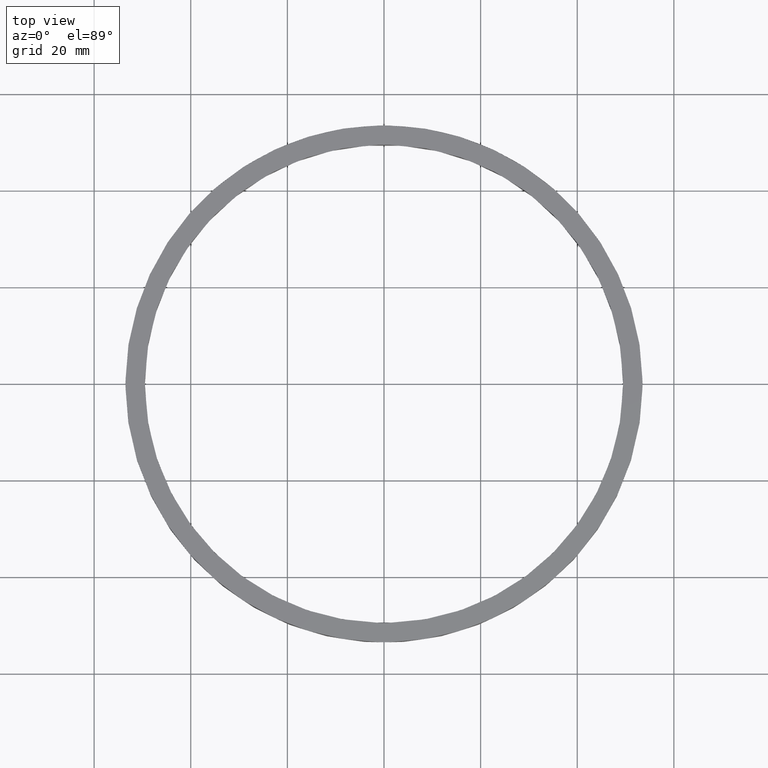
[diagram: clean part render]
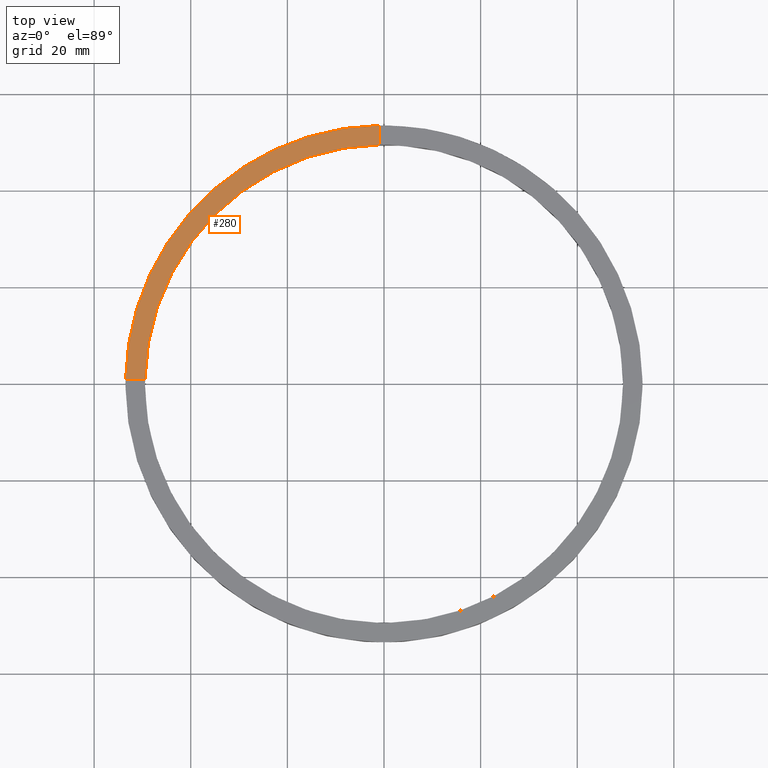
[diagram: same view with one face highlighted and labeled with its STEP entity id]
A machine part, top view. The second image highlights one B-rep face of the part: STEP entity #280.
In plain terms, the highlighted planar face has unit normal (0, 0, 1).
Its self-contained STEP definition (entity closure, byte-faithful):
#83 = CIRCLE ( 'NONE', #368, 53.50000000000000000 ) ;
#89 = FACE_OUTER_BOUND ( 'NONE', #485, .T. ) ;
#98 = VECTOR ( 'NONE', #326, 1000.000000000000000 ) ;
#99 = LINE ( 'NONE', #245, #612 ) ;
#145 = CARTESIAN_POINT ( 'NONE',  ( -1.000000000000027311, 53.49065338916696533, 5.000000000000000000 ) ) ;
#155 = DIRECTION ( 'NONE',  ( 0.000000000000000000, 0.000000000000000000, 1.000000000000000000 ) ) ;
#184 = ORIENTED_EDGE ( 'NONE', *, *, #276, .F. ) ;
#215 = DIRECTION ( 'NONE',  ( 1.000000000000000000, 0.000000000000000000, -0.000000000000000000 ) ) ;
#229 = VERTEX_POINT ( 'NONE', #348 ) ;
#234 = EDGE_CURVE ( 'NONE', #609, #433, #99, .T. ) ;
#245 = CARTESIAN_POINT ( 'NONE',  ( -1.000000000000027311, 43.50000000000000000, 5.000000000000000000 ) ) ;
#262 = CARTESIAN_POINT ( 'NONE',  ( 0.000000000000000000, 0.000000000000000000, 5.000000000000000000 ) ) ;
#275 = EDGE_CURVE ( 'NONE', #435, #229, #363, .T. ) ;
#276 = EDGE_CURVE ( 'NONE', #433, #435, #353, .T. ) ;
#280 = ADVANCED_FACE ( 'NONE', ( #89 ), #734, .T. ) ;
#315 = ORIENTED_EDGE ( 'NONE', *, *, #234, .F. ) ;
#321 = EDGE_CURVE ( 'NONE', #609, #229, #83, .T. ) ;
#326 = DIRECTION ( 'NONE',  ( -1.000000000000000000, -1.951563910473907735E-16, 0.000000000000000000 ) ) ;
#348 = CARTESIAN_POINT ( 'NONE',  ( -53.49065338916696533, 0.9999999999999674705, 5.000000000000000000 ) ) ;
#353 = CIRCLE ( 'NONE', #726, 49.50000000000000711 ) ;
#355 = CARTESIAN_POINT ( 'NONE',  ( 0.000000000000000000, 0.000000000000000000, 5.000000000000000000 ) ) ;
#363 = LINE ( 'NONE', #536, #98 ) ;
#368 = AXIS2_PLACEMENT_3D ( 'NONE', #262, #155, #725 ) ;
#376 = AXIS2_PLACEMENT_3D ( 'NONE', #780, #522, #215 ) ;
#433 = VERTEX_POINT ( 'NONE', #525 ) ;
#435 = VERTEX_POINT ( 'NONE', #710 ) ;
#449 = DIRECTION ( 'NONE',  ( 1.000000000000000000, 0.000000000000000000, 0.000000000000000000 ) ) ;
#474 = ORIENTED_EDGE ( 'NONE', *, *, #321, .T. ) ;
#485 = EDGE_LOOP ( 'NONE', ( #315, #474, #565, #184 ) ) ;
#497 = DIRECTION ( 'NONE',  ( 0.000000000000000000, 0.000000000000000000, 1.000000000000000000 ) ) ;
#503 = DIRECTION ( 'NONE',  ( -0.000000000000000000, -1.000000000000000000, -0.000000000000000000 ) ) ;
#522 = DIRECTION ( 'NONE',  ( 0.000000000000000000, 0.000000000000000000, 1.000000000000000000 ) ) ;
#525 = CARTESIAN_POINT ( 'NONE',  ( -1.000000000000027311, 49.48989795907849043, 5.000000000000000000 ) ) ;
#536 = CARTESIAN_POINT ( 'NONE',  ( -43.50000000000018474, 0.9999999999999694689, 5.000000000000000000 ) ) ;
#565 = ORIENTED_EDGE ( 'NONE', *, *, #275, .F. ) ;
#609 = VERTEX_POINT ( 'NONE', #145 ) ;
#612 = VECTOR ( 'NONE', #503, 1000.000000000000000 ) ;
#710 = CARTESIAN_POINT ( 'NONE',  ( -49.48989795907849043, 0.9999999999999681366, 5.000000000000000000 ) ) ;
#725 = DIRECTION ( 'NONE',  ( 1.000000000000000000, 0.000000000000000000, 0.000000000000000000 ) ) ;
#726 = AXIS2_PLACEMENT_3D ( 'NONE', #355, #497, #449 ) ;
#734 = PLANE ( 'NONE',  #376 ) ;
#780 = CARTESIAN_POINT ( 'NONE',  ( 0.000000000000000000, 0.000000000000000000, 5.000000000000000000 ) ) ;